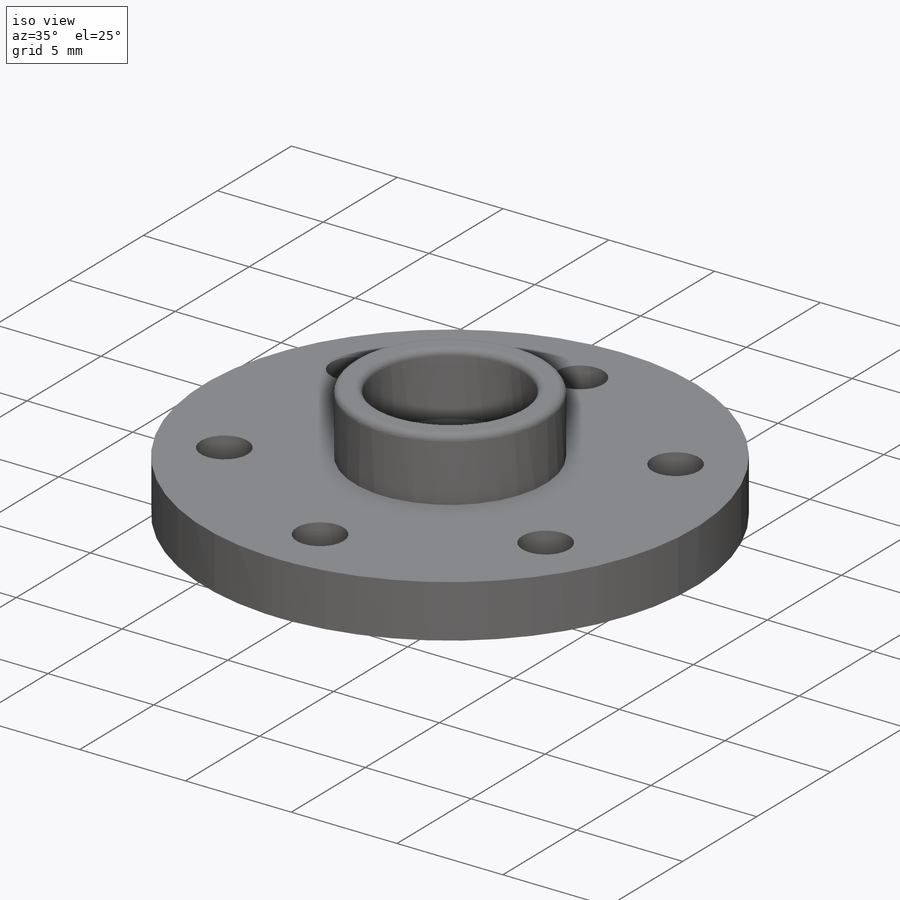
[diagram: iso view]
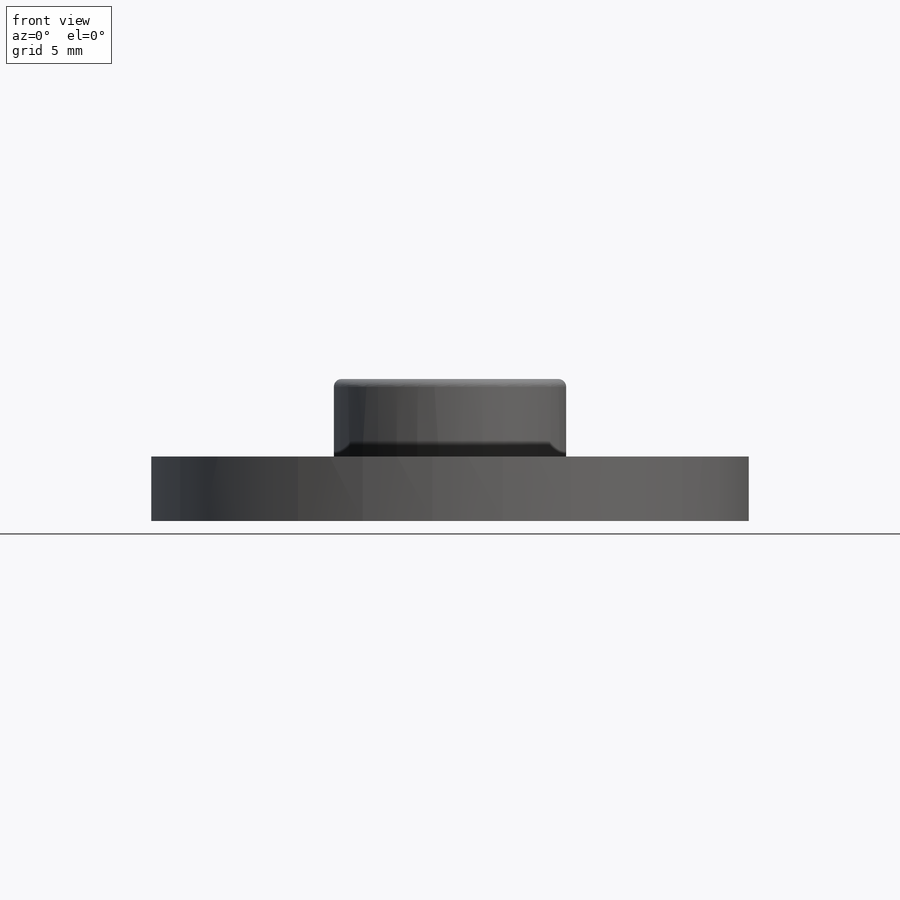
[diagram: front view]
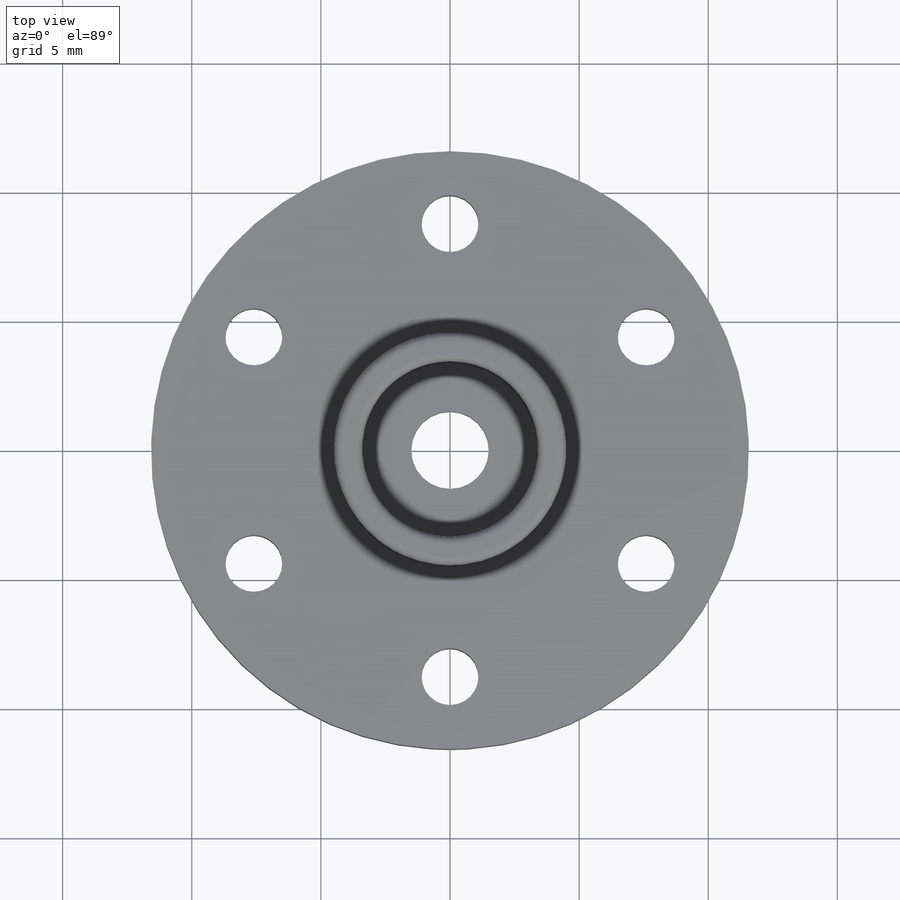
[diagram: top view]
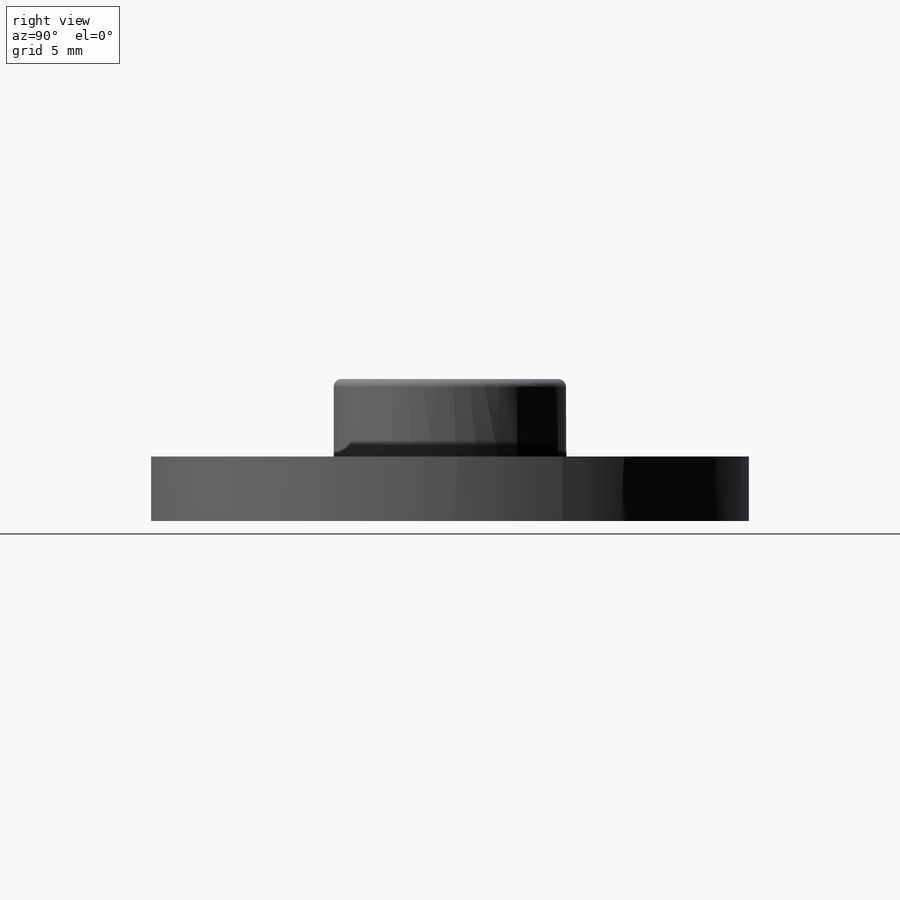
[diagram: right view]
SOLIDWORKS PART (.sldprt)
format: sldprt  version: not decoded by parser v0  size: 309,760 bytes
history: native  units: mm
features: sketch x6, cut_extrude x4, plane x3, extrude x2, material x1, fillet x1, pattern_circular x1 (+8 scaffold rows collapsed)
feature tree (26):
  scaffold x8  (default folders/planes/origin — collapsed)
  material  "Material <sin especificar>"
  plane  "Alzado"
  plane  "Planta"
  plane  "Vista lateral"
  sketch  "Croquis1"  dims[c1.D1=12.5mm c1.D3=5.5mm c1.D4=5.5mm c1.D5=5.0mm c2.D1=8.0mm c2.D2=13.5mm c2.D7=6.75mm c3.D2=15.0mm c3.D1=23.15mm c3.D3=32.0mm c4.D2=38.5mm c4.D4=9.0mm c5.D2=8.0mm c5.D1=8.0mm c5.D3=16.0mm c5.D4=8.5mm c6.D1=7.6mm]
  extrude  "Saliente-Extruir1"  Depth=2.5mm
  sketch  "Croquis2"  dims[D1=9.0mm D2=6.8mm]
  extrude  "Saliente-Extruir2"  Depth=3mm
  sketch  "Croquis3"  dims[D1=3.0mm]
  cut_extrude  "Cortar-Extruir1"  [1 undecoded]
  sketch  "Croquis4"  dims[D1=5.6mm]
  cut_extrude  "Cortar-Extruir2"  Depth=1.5mm
  sketch  "Croquis5"  dims[D1=9.0mm D2=7.0mm]
  cut_extrude  "Cortar-Extruir3"  Depth=0.5mm
  fillet  "Redondeo1"  Radius=0.3mm
  sketch  "Croquis6"  dims[D1=33.0mm D2=27.0mm D3=21.0mm D4=17.542mm D5=2.2mm]
  cut_extrude  "Cortar-Extruir4"  [1 undecoded]
  pattern_circular  "MatrizC1"  Count=6 Angle=60deg
decode coverage: 12 of 14 modeling features carry decoded parameters
note: 2 parameter values undecoded
note: suppression state not decoded; provenance and decode notes live in map.json
